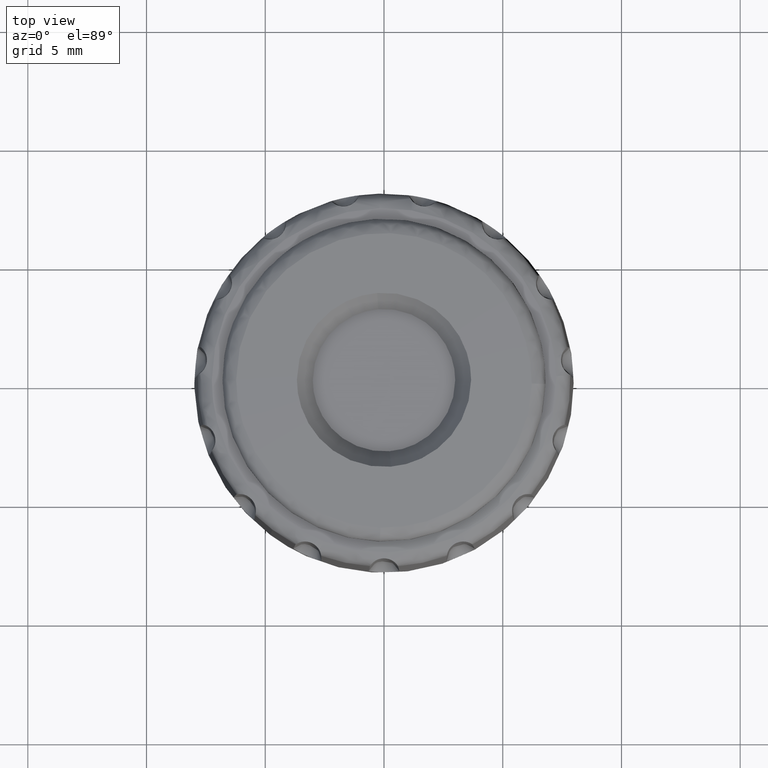
[diagram: clean part render]
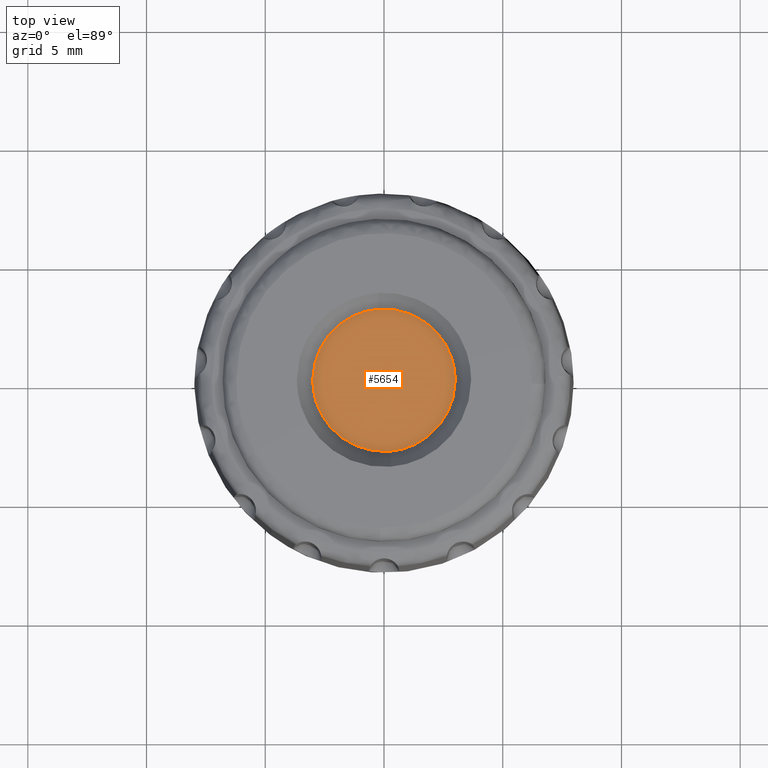
[diagram: same view with one face highlighted and labeled with its STEP entity id]
A machine part, top view. The second image highlights one B-rep face of the part: STEP entity #5654.
In plain terms, the highlighted face is a freeform B-spline surface patch.
Its self-contained STEP definition (entity closure, byte-faithful):
#869=CARTESIAN_POINT('',(-3.0,0.0,10.0));
#870=VERTEX_POINT('',#869);
#871=CARTESIAN_POINT('',(-0.235377287198822,2.990752001199907,10.000000000002469));
#872=VERTEX_POINT('',#871);
#873=CARTESIAN_POINT('',(-3.0,0.0,10.0));
#874=CARTESIAN_POINT('',(-3.000000000000000,2.773171474946438,10.0));
#875=CARTESIAN_POINT('',(-0.235377287198822,2.990752001199907,10.000000000002469));
#883=(BOUNDED_CURVE()B_SPLINE_CURVE(2,(#873,#874,#875),.UNSPECIFIED.,.F.,.U.)B_SPLINE_CURVE_WITH_KNOTS((3,3),(0.0,0.236331300631030),.UNSPECIFIED.)CURVE()GEOMETRIC_REPRESENTATION_ITEM()RATIONAL_B_SPLINE_CURVE((1.0,0.723120658607232,0.969723356168191))REPRESENTATION_ITEM(''));
#884=EDGE_CURVE('',#870,#872,#883,.T.);
#925=CARTESIAN_POINT('',(0.235377287198822,-2.990752001199907,10.000000000002469));
#926=VERTEX_POINT('',#925);
#932=CARTESIAN_POINT('',(0.235377287198822,-2.990752001199906,10.000000000002469));
#933=CARTESIAN_POINT('',(0.117870321038230,-3.0,10.0));
#934=CARTESIAN_POINT('',(0.0,-3.0,10.0));
#935=CARTESIAN_POINT('',(-3.0,-3.0,10.000000000000002));
#936=CARTESIAN_POINT('',(-3.0,0.0,10.0));
#944=(BOUNDED_CURVE()B_SPLINE_CURVE(2,(#932,#933,#934,#935,#936),.UNSPECIFIED.,.F.,.U.)B_SPLINE_CURVE_WITH_KNOTS((3,2,3),(0.736331300631030,0.750000000000000,1.0),.UNSPECIFIED.)CURVE()GEOMETRIC_REPRESENTATION_ITEM()RATIONAL_B_SPLINE_CURVE((0.969723356168191,0.983986122579316,1.0,0.707106781186548,1.0))REPRESENTATION_ITEM(''));
#945=EDGE_CURVE('',#926,#870,#944,.T.);
#968=CARTESIAN_POINT('',(3.0,0.0,10.0));
#969=VERTEX_POINT('',#968);
#970=CARTESIAN_POINT('',(-0.235377287198822,2.990752001199907,10.000000000002469));
#971=CARTESIAN_POINT('',(-0.117870321038231,3.000000000000000,10.000000000000002));
#972=CARTESIAN_POINT('',(0.0,3.0,10.0));
#973=CARTESIAN_POINT('',(3.0,3.0,10.000000000000002));
#974=CARTESIAN_POINT('',(3.0,0.0,10.0));
#982=(BOUNDED_CURVE()B_SPLINE_CURVE(2,(#970,#971,#972,#973,#974),.UNSPECIFIED.,.F.,.U.)B_SPLINE_CURVE_WITH_KNOTS((3,2,3),(0.236331300631030,0.250000000000000,0.500000000000000),.UNSPECIFIED.)CURVE()GEOMETRIC_REPRESENTATION_ITEM()RATIONAL_B_SPLINE_CURVE((0.969723356168191,0.983986122579316,1.0,0.707106781186548,1.0))REPRESENTATION_ITEM(''));
#983=EDGE_CURVE('',#872,#969,#982,.T.);
#985=CARTESIAN_POINT('',(3.0,0.0,10.0));
#986=CARTESIAN_POINT('',(3.0,-2.773171474946432,10.0));
#987=CARTESIAN_POINT('',(0.235377287198822,-2.990752001199906,10.000000000002469));
#995=(BOUNDED_CURVE()B_SPLINE_CURVE(2,(#985,#986,#987),.UNSPECIFIED.,.F.,.U.)B_SPLINE_CURVE_WITH_KNOTS((3,3),(0.500000000000000,0.736331300631030),.UNSPECIFIED.)CURVE()GEOMETRIC_REPRESENTATION_ITEM()RATIONAL_B_SPLINE_CURVE((1.0,0.723120658607232,0.969723356168190))REPRESENTATION_ITEM(''));
#996=EDGE_CURVE('',#969,#926,#995,.T.);
#5643=CARTESIAN_POINT('',(-3.299699988370835,-3.298784258180545,10.0));
#5644=CARTESIAN_POINT('',(3.299700149303376,-3.298784258180545,10.0));
#5645=CARTESIAN_POINT('',(-3.299699988370835,3.298784419113086,10.0));
#5646=CARTESIAN_POINT('',(3.299700149303376,3.298784419113086,10.0));
#5647=B_SPLINE_SURFACE_WITH_KNOTS('',1,1,((#5643,#5645),(#5644,#5646)),.UNSPECIFIED.,.F.,.F.,.U.,(2,2),(2,2),(0.0,6.599400137674212),(0.0,6.597568677293632),.UNSPECIFIED.);
#5648=ORIENTED_EDGE('',*,*,#945,.F.);
#5649=ORIENTED_EDGE('',*,*,#996,.F.);
#5650=ORIENTED_EDGE('',*,*,#983,.F.);
#5651=ORIENTED_EDGE('',*,*,#884,.F.);
#5652=EDGE_LOOP('',(#5648,#5649,#5650,#5651));
#5653=FACE_OUTER_BOUND('',#5652,.T.);
#5654=ADVANCED_FACE('',(#5653),#5647,.T.);